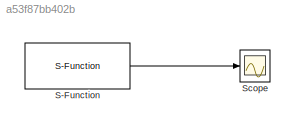
MODEL slx_a53f87bb402b
KIND model
BLOCK [S-Function] S-Function
  EnableBusSupport = off
  FunctionName = sfun_xlsread
  OpenFcn = sfun_xlsread_gui
  Parameters = g_file_path
  Ports = [0, 1]
BLOCK [Scope] Scope
  DataFormat = StructureWithTime
  Floating = off
  NumInputPorts = 1
  Ports = [1]
  SampleTime = 0
  ShowLegends = off
LINE S-Function:1 -> Scope:1
